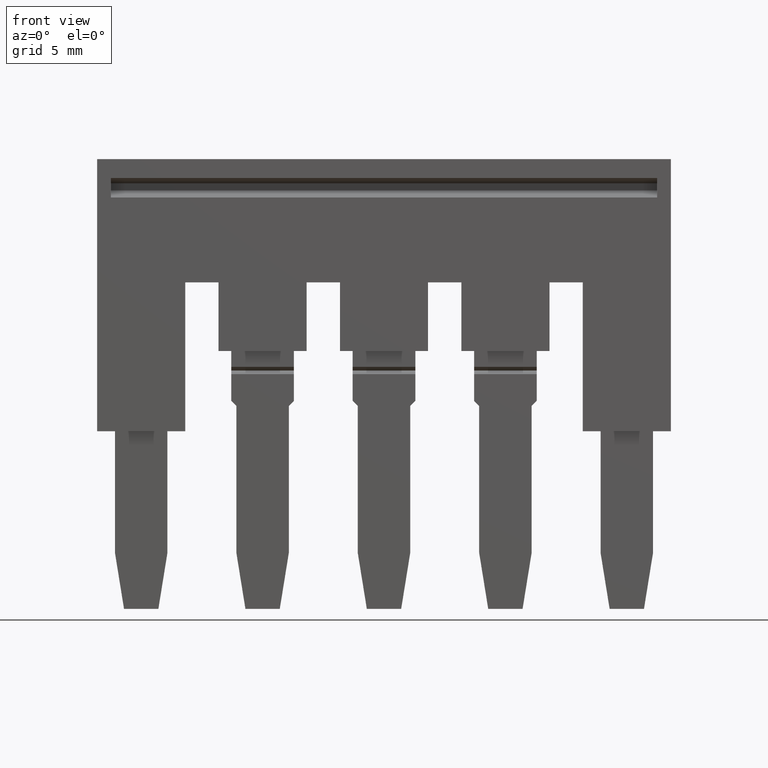
[diagram: clean part render]
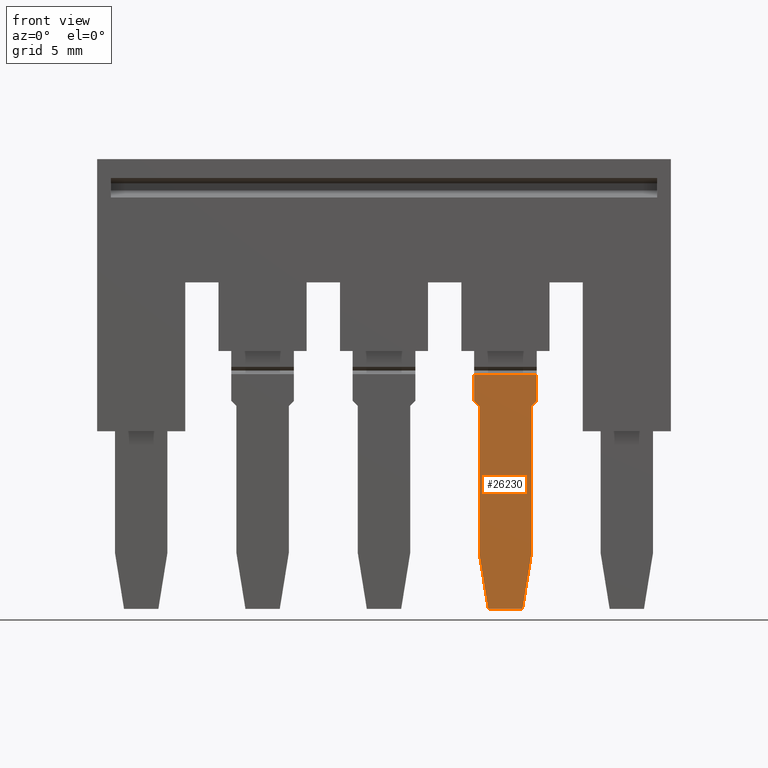
[diagram: same view with one face highlighted and labeled with its STEP entity id]
A machine part, front view. The second image highlights one B-rep face of the part: STEP entity #26230.
In plain terms, the highlighted planar face has unit normal (0, 1, 0).
Its self-contained STEP definition (entity closure, byte-faithful):
#25360=CARTESIAN_POINT('',(4.90716722169509,48.2714705882201,
-121.225882352952));
#25370=DIRECTION('',(-1.,1.22464679914735E-16,-7.49879891330929E-33));
#25380=DIRECTION('',(-1.22464679914735E-16,-1.,6.12323399573677E-17));
#25390=AXIS2_PLACEMENT_3D('',#25360,#25370,#25380);
#25400=PLANE('',#25390);
#25410=CARTESIAN_POINT('',(4.90716722169508,-21.7849999999974,
41.1999999999941));
#25420=DIRECTION('',(8.65956056231825E-17,0.707106781183552,
0.707106781189543));
#25430=VECTOR('',#25420,1.);
#25440=LINE('',#25410,#25430);
#25450=CARTESIAN_POINT('',(4.90716722169508,-21.7849999999987,
41.1999999999925));
#25460=VERTEX_POINT('',#25450);
#25470=CARTESIAN_POINT('',(4.90716722169508,-21.524999999998,
41.4599999999958));
#25480=VERTEX_POINT('',#25470);
#25490=EDGE_CURVE('',#25460,#25480,#25440,.T.);
#25500=ORIENTED_EDGE('',*,*,#25490,.F.);
#25510=CARTESIAN_POINT('',(4.90716722169509,-14.7145836302107,
41.4599999999962));
#25520=DIRECTION('',(1.22464679914735E-16,1.,5.97739454082616E-14));
#25530=VECTOR('',#25520,1.);
#25540=LINE('',#25510,#25530);
#25550=CARTESIAN_POINT('',(4.90716722169509,-20.1610705415586,
41.4599999999959));
#25560=VERTEX_POINT('',#25550);
#25570=EDGE_CURVE('',#25480,#25560,#25540,.T.);
#25580=ORIENTED_EDGE('',*,*,#25570,.F.);
#25590=CARTESIAN_POINT('',(4.90716722169508,-20.1610705415586,
49.1202658398132));
#25600=DIRECTION('',(-7.49879891330929E-33,5.44819631947958E-33,1.));
#25610=VECTOR('',#25600,1.);
#25620=LINE('',#25590,#25610);
#25630=CARTESIAN_POINT('',(4.90716722169509,-20.1610705415586,
38.2599999999929));
#25640=VERTEX_POINT('',#25630);
#25650=EDGE_CURVE('',#25640,#25560,#25620,.T.);
#25660=ORIENTED_EDGE('',*,*,#25650,.T.);
#25670=CARTESIAN_POINT('',(4.90716722169509,-14.7145836302107,
38.2599999999925));
#25680=DIRECTION('',(-1.22464679914735E-16,-1.,5.98964100881763E-14));
#25690=VECTOR('',#25680,1.);
#25700=LINE('',#25670,#25690);
#25710=CARTESIAN_POINT('',(4.90716722169508,-21.524999999998,
38.2599999999929));
#25720=VERTEX_POINT('',#25710);
#25730=EDGE_CURVE('',#25640,#25720,#25700,.T.);
#25740=ORIENTED_EDGE('',*,*,#25730,.F.);
#25750=CARTESIAN_POINT('',(4.90716722169508,-21.524999999998,
38.2599999999929));
#25760=DIRECTION('',(-8.65956056234002E-17,-0.70710678118533,
0.707106781187765));
#25770=VECTOR('',#25760,1.);
#25780=LINE('',#25750,#25770);
#25790=CARTESIAN_POINT('',(4.90716722169508,-21.7849999999993,
38.5199999999952));
#25800=VERTEX_POINT('',#25790);
#25810=EDGE_CURVE('',#25720,#25800,#25780,.T.);
#25820=ORIENTED_EDGE('',*,*,#25810,.F.);
#25830=CARTESIAN_POINT('',(4.90716722171458,-14.7145836324962,
38.5199999990313));
#25840=DIRECTION('',(2.88230901147957E-27,1.,9.11930314421364E-17));
#25850=VECTOR('',#25840,1.);
#25860=LINE('',#25830,#25850);
#25870=CARTESIAN_POINT('',(4.90716722169508,-29.2807420505038,
38.5199999990313));
#25880=VERTEX_POINT('',#25870);
#25890=EDGE_CURVE('',#25880,#25800,#25860,.T.);
#25900=ORIENTED_EDGE('',*,*,#25890,.T.);
#25910=CARTESIAN_POINT('',(4.90716722169509,-12.6051240000035,
35.8280274188108));
#25920=DIRECTION('',(-1.11022302462516E-16,-0.987219178105449,
0.159368423411924));
#25930=VECTOR('',#25920,1.);
#25940=LINE('',#25910,#25930);
#25950=CARTESIAN_POINT('',(4.90716722169508,-32.1500000022949,
38.9831890519593));
#25960=VERTEX_POINT('',#25950);
#25970=EDGE_CURVE('',#25880,#25960,#25940,.T.);
#25980=ORIENTED_EDGE('',*,*,#25970,.F.);
#25990=CARTESIAN_POINT('',(4.90716722171457,-32.1500000022947,
37.6597341592149));
#26000=DIRECTION('',(8.57252759403273E-16,1.44960956186225E-13,-1.));
#26010=VECTOR('',#26000,1.);
#26020=LINE('',#25990,#26010);
#26030=CARTESIAN_POINT('',(4.90716722169508,-32.1500000022951,
40.7368109480344));
#26040=VERTEX_POINT('',#26030);
#26050=EDGE_CURVE('',#26040,#25960,#26020,.T.);
#26060=ORIENTED_EDGE('',*,*,#26050,.T.);
#26070=CARTESIAN_POINT('',(4.90716722169509,-14.7145836302107,
43.5514390269601));
#26080=DIRECTION('',(1.11022302462516E-16,0.987219178105449,
0.159368423411924));
#26090=VECTOR('',#26080,1.);
#26100=LINE('',#26070,#26090);
#26110=CARTESIAN_POINT('',(4.90716722169508,-29.2807420565122,
41.1999999999925));
#26120=VERTEX_POINT('',#26110);
#26130=EDGE_CURVE('',#26040,#26120,#26100,.T.);
#26140=ORIENTED_EDGE('',*,*,#26130,.F.);
#26150=CARTESIAN_POINT('',(4.90716722169509,-14.7145836302107,
41.1999999999925));
#26160=DIRECTION('',(1.22464679914735E-16,1.,-6.12323399573676E-17));
#26170=VECTOR('',#26160,1.);
#26180=LINE('',#26150,#26170);
#26190=EDGE_CURVE('',#26120,#25460,#26180,.T.);
#26200=ORIENTED_EDGE('',*,*,#26190,.F.);
#26210=EDGE_LOOP('',(#26200,#26140,#26060,#25980,#25900,#25820,#25740,
#25660,#25580,#25500));
#26220=FACE_OUTER_BOUND('',#26210,.T.);
#26230=ADVANCED_FACE('',(#26220),#25400,.F.);